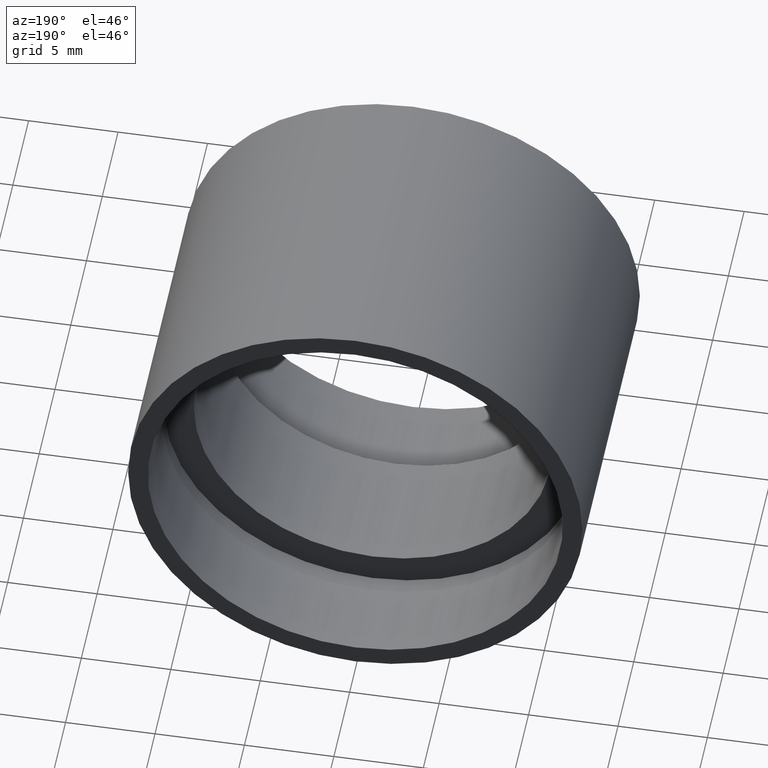
[diagram: clean part render]
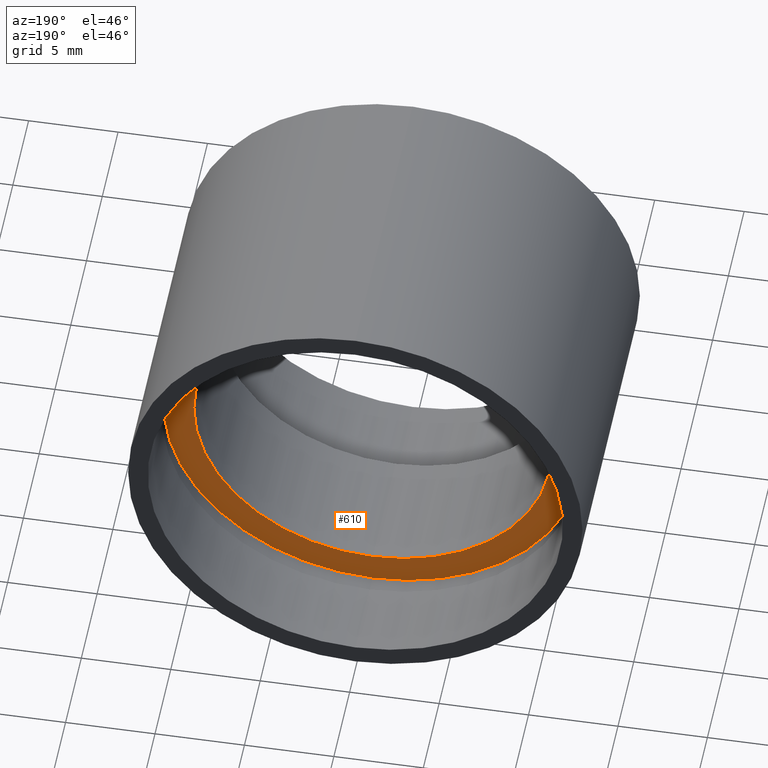
[diagram: same view with one face highlighted and labeled with its STEP entity id]
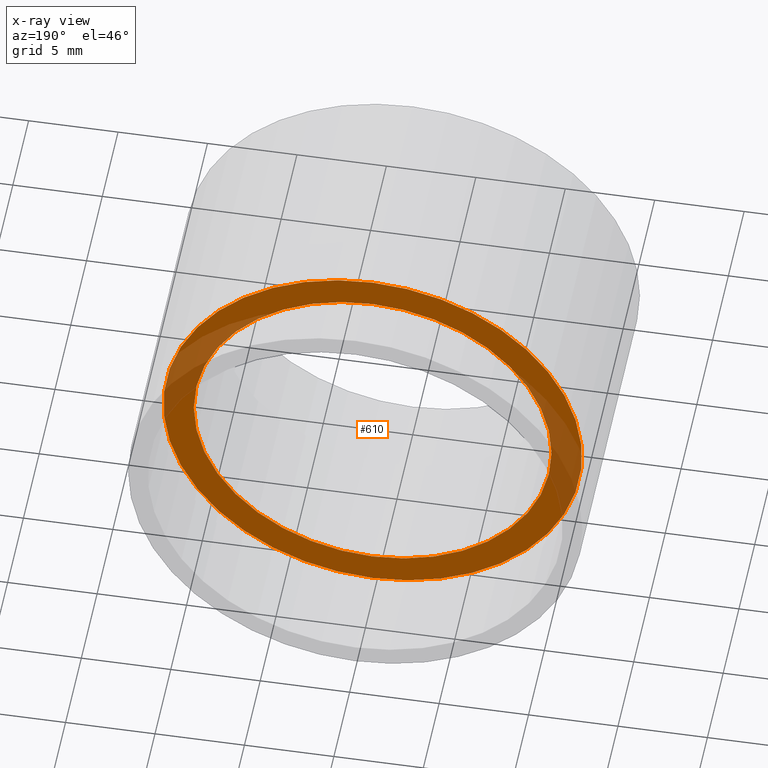
[diagram: x-ray of the same camera — body ghosted, the highlighted face saturated]
A machine part, auxiliary view. The second image highlights one B-rep face of the part: STEP entity #610.
The next image is the same camera in x-ray: the body ghosted, the highlighted face saturated — about 19% of this face is hidden behind the body in this view.
In plain terms, the highlighted planar face has unit normal (0, -1, 0).
Its self-contained STEP definition (entity closure, byte-faithful):
#17 = AXIS2_PLACEMENT_3D ( 'NONE', #325, #565, #183 ) ;
#44 = ORIENTED_EDGE ( 'NONE', *, *, #124, .T. ) ;
#50 = VERTEX_POINT ( 'NONE', #125 ) ;
#63 = VERTEX_POINT ( 'NONE', #458 ) ;
#68 = EDGE_CURVE ( 'NONE', #186, #50, #411, .T. ) ;
#73 = DIRECTION ( 'NONE',  ( 0.0000000000000000000, -0.0000000000000000000, -1.000000000000000000 ) ) ;
#75 = DIRECTION ( 'NONE',  ( 0.0000000000000000000, 0.0000000000000000000, 1.000000000000000000 ) ) ;
#124 = EDGE_CURVE ( 'NONE', #63, #281, #302, .T. ) ;
#125 = CARTESIAN_POINT ( 'NONE',  ( 1.224646799147355400E-015, 12.69999999999996200, -10.00000000000002000 ) ) ;
#135 = CARTESIAN_POINT ( 'NONE',  ( 0.0000000000000000000, 12.69999999999996200, 0.0000000000000000000 ) ) ;
#136 = DIRECTION ( 'NONE',  ( 0.0000000000000000000, 0.0000000000000000000, 1.000000000000000000 ) ) ;
#148 = EDGE_LOOP ( 'NONE', ( #44, #569 ) ) ;
#155 = CARTESIAN_POINT ( 'NONE',  ( 1.432836755002405500E-015, 12.69999999999996200, -11.70000000000001700 ) ) ;
#167 = ORIENTED_EDGE ( 'NONE', *, *, #68, .F. ) ;
#183 = DIRECTION ( 'NONE',  ( 0.0000000000000000000, 0.0000000000000000000, 1.000000000000000000 ) ) ;
#186 = VERTEX_POINT ( 'NONE', #480 ) ;
#214 = FACE_BOUND ( 'NONE', #393, .T. ) ;
#274 = DIRECTION ( 'NONE',  ( 0.0000000000000000000, -1.000000000000000000, 0.0000000000000000000 ) ) ;
#281 = VERTEX_POINT ( 'NONE', #155 ) ;
#296 = ORIENTED_EDGE ( 'NONE', *, *, #524, .F. ) ;
#302 = CIRCLE ( 'NONE', #375, 11.70000000000001700 ) ;
#322 = DIRECTION ( 'NONE',  ( -0.0000000000000000000, 1.000000000000000000, -0.0000000000000000000 ) ) ;
#325 = CARTESIAN_POINT ( 'NONE',  ( 0.0000000000000000000, 12.69999999999996200, 0.0000000000000000000 ) ) ;
#347 = FACE_OUTER_BOUND ( 'NONE', #148, .T. ) ;
#375 = AXIS2_PLACEMENT_3D ( 'NONE', #559, #557, #75 ) ;
#393 = EDGE_LOOP ( 'NONE', ( #167, #296 ) ) ;
#411 = CIRCLE ( 'NONE', #621, 10.00000000000002000 ) ;
#421 = AXIS2_PLACEMENT_3D ( 'NONE', #466, #274, #73 ) ;
#458 = CARTESIAN_POINT ( 'NONE',  ( 0.0000000000000000000, 12.69999999999996200, 11.70000000000001700 ) ) ;
#465 = CIRCLE ( 'NONE', #17, 10.00000000000002000 ) ;
#466 = CARTESIAN_POINT ( 'NONE',  ( 10.00000000000002000, 12.69999999999997400, 0.0000000000000000000 ) ) ;
#468 = DIRECTION ( 'NONE',  ( 0.0000000000000000000, 0.0000000000000000000, 1.000000000000000000 ) ) ;
#480 = CARTESIAN_POINT ( 'NONE',  ( 0.0000000000000000000, 12.69999999999996200, 10.00000000000002000 ) ) ;
#484 = EDGE_CURVE ( 'NONE', #281, #63, #547, .T. ) ;
#516 = PLANE ( 'NONE',  #421 ) ;
#524 = EDGE_CURVE ( 'NONE', #50, #186, #465, .T. ) ;
#547 = CIRCLE ( 'NONE', #578, 11.70000000000001700 ) ;
#557 = DIRECTION ( 'NONE',  ( -0.0000000000000000000, 1.000000000000000000, -0.0000000000000000000 ) ) ;
#559 = CARTESIAN_POINT ( 'NONE',  ( 0.0000000000000000000, 12.69999999999996200, 0.0000000000000000000 ) ) ;
#560 = DIRECTION ( 'NONE',  ( -0.0000000000000000000, 1.000000000000000000, -0.0000000000000000000 ) ) ;
#565 = DIRECTION ( 'NONE',  ( -0.0000000000000000000, 1.000000000000000000, -0.0000000000000000000 ) ) ;
#569 = ORIENTED_EDGE ( 'NONE', *, *, #484, .T. ) ;
#578 = AXIS2_PLACEMENT_3D ( 'NONE', #609, #322, #468 ) ;
#609 = CARTESIAN_POINT ( 'NONE',  ( 0.0000000000000000000, 12.69999999999996200, 0.0000000000000000000 ) ) ;
#610 = ADVANCED_FACE ( 'NONE', ( #214, #347 ), #516, .F. ) ;
#621 = AXIS2_PLACEMENT_3D ( 'NONE', #135, #560, #136 ) ;